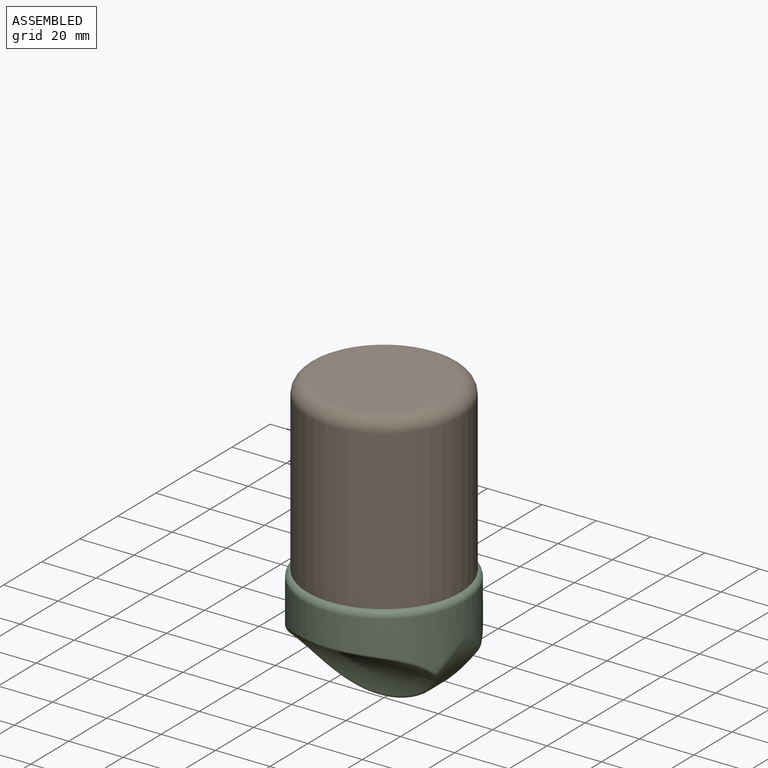
[diagram: assembled view]
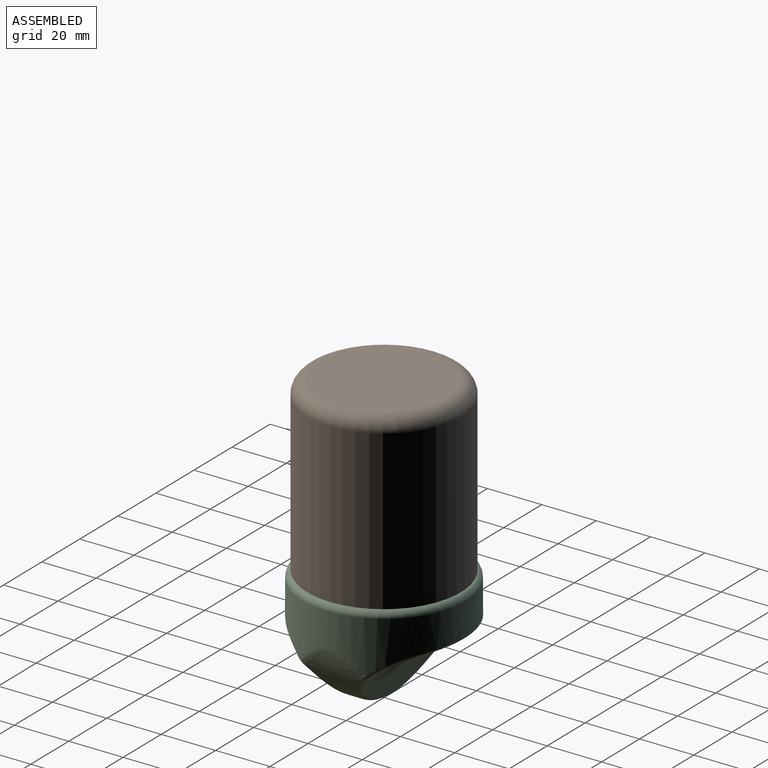
[diagram: assembled view, second angle]
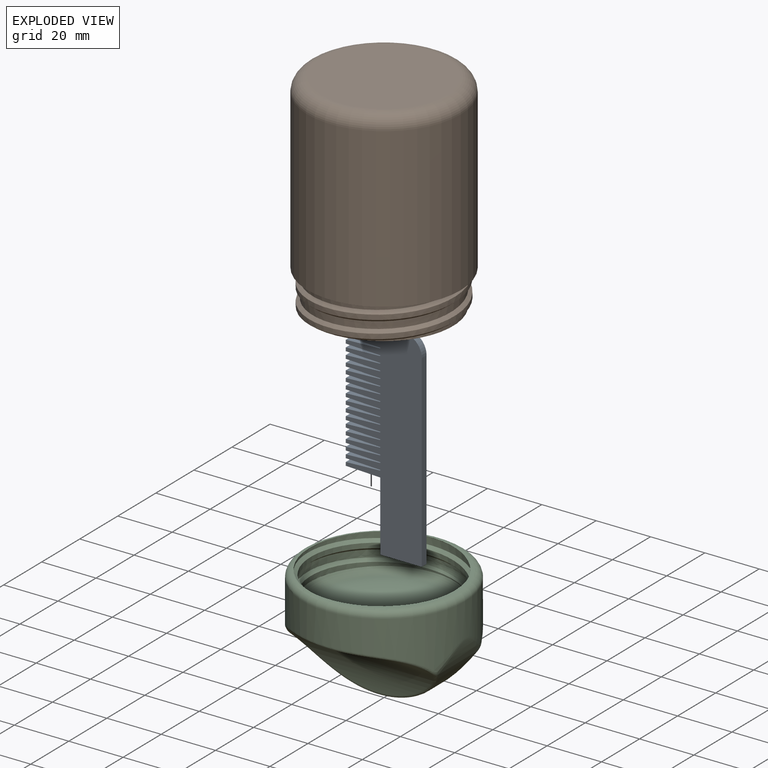
[diagram: exploded view]
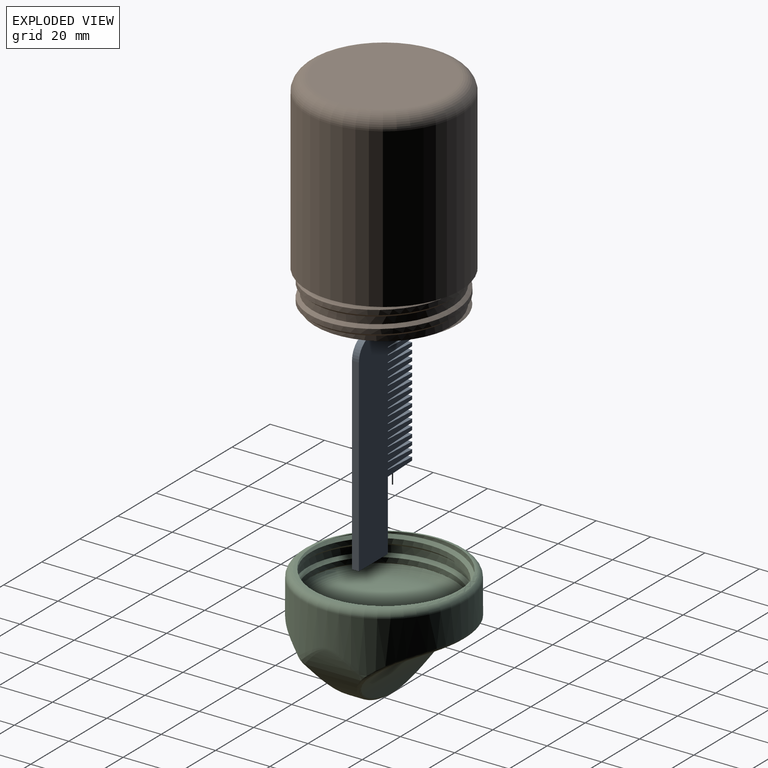
[diagram: exploded view, second angle]
ASSEMBLY  parts=3 mates=4
PART A: 86 faces, bbox 76.2x27.9x2.5 mm
  f0: plane 2.54x0.25mm, normal (0,1,0), area 0.6mm2, adj f24,f25,f80,f85
  f1: plane 2.54x0.25mm, normal (0,1,0), area 0.6mm2, adj f24,f25,f77,f82
  f2: plane 2.54x0.25mm, normal (0,1,0), area 0.6mm2, adj f24,f25,f74,f79
  f3: plane 2.54x0.25mm, normal (0,1,0), area 0.6mm2, adj f24,f25,f71,f76
  f4: plane 2.54x0.25mm, normal (0,1,0), area 0.6mm2, adj f24,f25,f68,f73
  f5: plane 2.54x0.25mm, normal (0,1,0), area 0.6mm2, adj f24,f25,f65,f70
  f6: plane 2.54x0.25mm, normal (0,1,0), area 0.6mm2, adj f24,f25,f62,f67
  f7: plane 2.54x0.25mm, normal (0,1,0), area 0.6mm2, adj f24,f25,f59,f64
  f8: plane 2.54x0.25mm, normal (0,1,0), area 0.6mm2, adj f24,f25,f56,f61
  f9: plane 2.54x0.25mm, normal (0,1,0), area 0.6mm2, adj f24,f25,f53,f58
  f10: plane 2.54x0.25mm, normal (0,1,0), area 0.6mm2, adj f24,f25,f50,f55
  f11: plane 2.54x0.25mm, normal (0,1,0), area 0.6mm2, adj f24,f25,f47,f52
  f12: plane 2.54x0.25mm, normal (0,1,0), area 0.6mm2, adj f24,f25,f44,f49
  f13: plane 2.54x0.25mm, normal (0,1,0), area 0.6mm2, adj f24,f25,f41,f46
  f14: plane 2.54x0.25mm, normal (0,1,0), area 0.6mm2, adj f24,f25,f38,f43
  f15: plane 2.54x0.25mm, normal (0,1,0), area 0.6mm2, adj f24,f25,f35,f40
  f16: plane 2.54x0.25mm, normal (0,1,0), area 0.6mm2, adj f24,f25,f32,f37
  f17: plane 2.54x0.25mm, normal (0,1,0), area 0.6mm2, adj f24,f25,f29,f34
  f18: plane 2.54x0.25mm, normal (0,1,0), area 0.6mm2, adj f24,f25,f26,f31
  f19: plane 69.41x2.54mm, normal (0,-1,0), area 176.3mm2, adj f20,f23,f24,f25
  f20: plane 15.24x2.54mm, normal (1,0,0), area 38.7mm2, adj f19,f21,f24,f25
  f21: plane 25.65x2.54mm, normal (0,1,0), area 65.2mm2, adj f20,f24,f25,f83
  f22: plane 8.45x2.54mm, normal (-1,0,0), area 21.5mm2, adj f23,f24,f25,f28
  f23: cylinder r=6.79mm len=6.79mm, axis (0,0,-1), area 27.1mm2, adj f19,f22,f24,f25
  f24: plane 76.2x27.94mm, normal (0,0,1), area 1603mm2, adj f0,f1,f2,f3,f4,f5,f6,f7
  f25: plane 76.2x27.94mm, normal (0,0,-1), area 1603mm2, adj f0,f1,f2,f3,f4,f5,f6,f7
  f26: plane 12.7x2.54mm, normal (1,0.04,0), area 32.3mm2, adj f18,f24,f25,f27
  f27: plane 2.54x1.27mm, normal (0,1,0), area 3.2mm2, adj f24,f25,f26,f28
  f28: plane 12.7x2.54mm, normal (-1,0.04,0), area 32.3mm2, adj f22,f24,f25,f27
  f29: plane 12.7x2.54mm, normal (1,0.04,0), area 32.3mm2, adj f17,f24,f25,f30
  f30: plane 2.54x1.27mm, normal (0,1,0), area 3.2mm2, adj f24,f25,f29,f31
  f31: plane 12.7x2.54mm, normal (-1,0.04,0), area 32.3mm2, adj f18,f24,f25,f30
  f32: plane 12.7x2.54mm, normal (1,0.04,0), area 32.3mm2, adj f16,f24,f25,f33
  f33: plane 2.54x1.27mm, normal (0,1,0), area 3.2mm2, adj f24,f25,f32,f34
  f34: plane 12.7x2.54mm, normal (-1,0.04,0), area 32.3mm2, adj f17,f24,f25,f33
  f35: plane 12.7x2.54mm, normal (1,0.04,0), area 32.3mm2, adj f15,f24,f25,f36
  f36: plane 2.54x1.27mm, normal (0,1,0), area 3.2mm2, adj f24,f25,f35,f37
  f37: plane 12.7x2.54mm, normal (-1,0.04,0), area 32.3mm2, adj f16,f24,f25,f36
  f38: plane 12.7x2.54mm, normal (1,0.04,0), area 32.3mm2, adj f14,f24,f25,f39
  f39: plane 2.54x1.27mm, normal (0,1,0), area 3.2mm2, adj f24,f25,f38,f40
  f40: plane 12.7x2.54mm, normal (-1,0.04,0), area 32.3mm2, adj f15,f24,f25,f39
  f41: plane 12.7x2.54mm, normal (1,0.04,0), area 32.3mm2, adj f13,f24,f25,f42
  f42: plane 2.54x1.27mm, normal (0,1,0), area 3.2mm2, adj f24,f25,f41,f43
  f43: plane 12.7x2.54mm, normal (-1,0.04,0), area 32.3mm2, adj f14,f24,f25,f42
  f44: plane 12.7x2.54mm, normal (1,0.04,0), area 32.3mm2, adj f12,f24,f25,f45
  f45: plane 2.54x1.27mm, normal (0,1,0), area 3.2mm2, adj f24,f25,f44,f46
  f46: plane 12.7x2.54mm, normal (-1,0.04,0), area 32.3mm2, adj f13,f24,f25,f45
  f47: plane 12.7x2.54mm, normal (1,0.04,0), area 32.3mm2, adj f11,f24,f25,f48
  f48: plane 2.54x1.27mm, normal (0,1,0), area 3.2mm2, adj f24,f25,f47,f49
  f49: plane 12.7x2.54mm, normal (-1,0.04,0), area 32.3mm2, adj f12,f24,f25,f48
  f50: plane 12.7x2.54mm, normal (1,0.04,0), area 32.3mm2, adj f10,f24,f25,f51
  f51: plane 2.54x1.27mm, normal (0,1,0), area 3.2mm2, adj f24,f25,f50,f52
  f52: plane 12.7x2.54mm, normal (-1,0.04,0), area 32.3mm2, adj f11,f24,f25,f51
  f53: plane 12.7x2.54mm, normal (1,0.04,0), area 32.3mm2, adj f9,f24,f25,f54
  f54: plane 2.54x1.27mm, normal (0,1,0), area 3.2mm2, adj f24,f25,f53,f55
  f55: plane 12.7x2.54mm, normal (-1,0.04,0), area 32.3mm2, adj f10,f24,f25,f54
  f56: plane 12.7x2.54mm, normal (1,0.04,0), area 32.3mm2, adj f8,f24,f25,f57
  f57: plane 2.54x1.27mm, normal (0,1,0), area 3.2mm2, adj f24,f25,f56,f58
  f58: plane 12.7x2.54mm, normal (-1,0.04,0), area 32.3mm2, adj f9,f24,f25,f57
  f59: plane 12.7x2.54mm, normal (1,0.04,0), area 32.3mm2, adj f7,f24,f25,f60
  f60: plane 2.54x1.27mm, normal (0,1,0), area 3.2mm2, adj f24,f25,f59,f61
  f61: plane 12.7x2.54mm, normal (-1,0.04,0), area 32.3mm2, adj f8,f24,f25,f60
  f62: plane 12.7x2.54mm, normal (1,0.04,0), area 32.3mm2, adj f6,f24,f25,f63
  f63: plane 2.54x1.27mm, normal (0,1,0), area 3.2mm2, adj f24,f25,f62,f64
  f64: plane 12.7x2.54mm, normal (-1,0.04,0), area 32.3mm2, adj f7,f24,f25,f63
  f65: plane 12.7x2.54mm, normal (1,0.04,0), area 32.3mm2, adj f5,f24,f25,f66
  f66: plane 2.54x1.27mm, normal (0,1,0), area 3.2mm2, adj f24,f25,f65,f67
  f67: plane 12.7x2.54mm, normal (-1,0.04,0), area 32.3mm2, adj f6,f24,f25,f66
  f68: plane 12.7x2.54mm, normal (1,0.04,0), area 32.3mm2, adj f4,f24,f25,f69
  f69: plane 2.54x1.27mm, normal (0,1,0), area 3.2mm2, adj f24,f25,f68,f70
  f70: plane 12.7x2.54mm, normal (-1,0.04,0), area 32.3mm2, adj f5,f24,f25,f69
  f71: plane 12.7x2.54mm, normal (1,0.04,0), area 32.3mm2, adj f3,f24,f25,f72
  f72: plane 2.54x1.27mm, normal (0,1,0), area 3.2mm2, adj f24,f25,f71,f73
  f73: plane 12.7x2.54mm, normal (-1,0.04,0), area 32.3mm2, adj f4,f24,f25,f72
  f74: plane 12.7x2.54mm, normal (1,0.04,0), area 32.3mm2, adj f2,f24,f25,f75
  f75: plane 2.54x1.27mm, normal (0,1,0), area 3.2mm2, adj f24,f25,f74,f76
  f76: plane 12.7x2.54mm, normal (-1,0.04,0), area 32.3mm2, adj f3,f24,f25,f75
  f77: plane 12.7x2.54mm, normal (1,0.04,0), area 32.3mm2, adj f1,f24,f25,f78
  f78: plane 2.54x1.27mm, normal (0,1,0), area 3.2mm2, adj f24,f25,f77,f79
  f79: plane 12.7x2.54mm, normal (-1,0.04,0), area 32.3mm2, adj f2,f24,f25,f78
  f80: plane 12.7x2.54mm, normal (1,0.04,0), area 32.3mm2, adj f0,f24,f25,f81
  f81: plane 2.54x1.27mm, normal (0,1,0), area 3.2mm2, adj f24,f25,f80,f82
  f82: plane 12.7x2.54mm, normal (-1,0.04,0), area 32.3mm2, adj f1,f24,f25,f81
  f83: plane 12.7x2.54mm, normal (1,0.04,0), area 32.3mm2, adj f21,f24,f25,f84
  f84: plane 2.54x1.27mm, normal (0,1,0), area 3.2mm2, adj f24,f25,f83,f85
  f85: plane 12.7x2.54mm, normal (-1,0.04,0), area 32.3mm2, adj f0,f24,f25,f84
PART B: 13 faces, bbox 61.3x61.8x78.3 mm
  f0: cylinder r=25.4mm len=50.8mm, axis (0,0,-1), area 856.5mm2, adj f2,f3,f5,f8,f9
  f1: cylinder r=26.67mm len=53.34mm, axis (0,0,1), area 585.2mm2, adj f2,f3,f5,f8,f9
  f2: bspline ~61.59x53.34mm, area 532.3mm2, adj f0,f1,f5,f9
  f3: bspline ~61.59x53.34mm, area 474.5mm2, adj f0,f1,f8,f9
  f4: cylinder r=28.24mm len=58.42mm, axis (0,0,-1), area 10365.3mm2, adj f5,f7
  f5: plane 56.69x56.69mm, normal (0,0,1), area 432.7mm2, adj f0,f1,f2,f4,f8
  f6: plane 46.32x46.32mm, normal (0,0,-1), area 1684.9mm2, adj f7
  f7: torus R=23.16mm, axis (0,0,1), area 1323.3mm2, adj f4,f6
  f8: plane 1.91x1.27mm, normal (0,-1,0), area 1.8mm2, adj f0,f1,f3,f5
  f9: plane 52.29x51.88mm, normal (0,0,1), area 481mm2, adj f0,f1,f2,f3,f12
  f10: plane 35.49x35.49mm, normal (0,0,1), area 989.5mm2, adj f11
  f11: torus R=17.75mm, axis (0,0,-1), area 1052mm2, adj f10,f12
  f12: cylinder r=22.83mm len=67.95mm, axis (0,0,-1), area 9745.2mm2, adj f9,f11
PART C: 27 faces, bbox 65.4x65.4x43.3 mm
  f0: plane 44.45x44.45mm, normal (0,0,-1), area 1507.8mm2, adj f6,f21,f22,f23,f24
  f1: cylinder r=29.84mm len=59.69mm, axis (0,0,-1), area 3582.8mm2, adj f11,f12,f16,f20,f26
  f2: cylinder r=30.25mm len=59.53mm, axis (0,-1,0), area 1599.2mm2, adj f11,f12,f13,f17
  f3: cylinder r=29.67mm len=51.86mm, axis (1,0,0), area 1457.6mm2, adj f17,f18,f19,f20
  f4: cylinder r=29.67mm len=51.86mm, axis (1,0,0), area 1457.4mm2, adj f13,f14,f15,f16
  f5: plane 55.43x36.32mm, normal (0,0,-1), area 90mm2, adj f7,f8,f9,f26
  f6: torus R=22.23mm, axis (0,0,1), area 1004.1mm2, adj f0,f7,f8,f9,f10
  f7: bspline ~63.06x54.61mm, area 388.3mm2, adj f5,f6,f8,f10
  f8: cylinder r=26.09mm len=52.18mm, axis (0,0,-1), area 500.8mm2, adj f5,f6,f7,f9
  f9: bspline ~63.06x54.61mm, area 423.2mm2, adj f5,f6,f8,f10
  f10: cylinder r=27.3mm len=53.35mm, axis (0,0,-1), area 525.4mm2, adj f6,f7,f9,f26
  f11: bspline ~27.84x10.69mm, area 54.6mm2, adj f1,f2,f14,f19
  f12: bspline ~27.71x10.62mm, area 54.6mm2, adj f1,f2,f15,f18
  f13: bspline ~55.78x18.75mm, area 113.6mm2, adj f2,f4,f14,f15
  f14: bspline ~4.2x4.11mm, area 4.4mm2, adj f4,f11,f13,f16
  f15: bspline ~4.16x4.07mm, area 4.4mm2, adj f4,f12,f13,f16
  f16: bspline ~55.58x19.4mm, area 117.9mm2, adj f1,f4,f14,f15
  f17: bspline ~55.78x18.75mm, area 113.6mm2, adj f2,f3,f18,f19
  f18: bspline ~4.2x4.11mm, area 4.4mm2, adj f3,f12,f17,f20
  f19: bspline ~4.16x4.07mm, area 4.4mm2, adj f3,f11,f17,f20
  f20: bspline ~56.01x19.52mm, area 117.9mm2, adj f1,f3,f18,f19
  f21: plane 12.7x2.79mm, normal (-1,0,0), area 35.5mm2, adj f0,f22,f24,f25
  f22: plane 15.75x12.7mm, normal (0,1,0), area 200mm2, adj f0,f21,f23,f25
  f23: plane 12.7x2.79mm, normal (1,0,0), area 35.5mm2, adj f0,f22,f24,f25
  f24: plane 15.75x12.7mm, normal (0,-1,0), area 200mm2, adj f0,f21,f23,f25
  f25: plane 15.75x2.79mm, normal (0,0,-1), area 44mm2, adj f21,f22,f23,f24
  f26: torus R=27.3mm, axis (0,0,1), area 725mm2, adj f1,f5,f10
PLACE A rot(axis=(-0.58,0.58,0.58),120deg) t=(-0.39,-0.13,-10.16)mm
PLACE B rot(axis=(0,-1,0),180deg) t=(0,0,2.54)mm
PLACE C rot(axis=(1,0,0),180deg) t=(0,0,2.54)mm
MATE planar C.f1 <-> B.f0  axis (0,0,1) through (0,0,-10.16)mm
MATE planar A.f20 <-> C.f25  axis (0,0,-1) through (7.23,-0.13,-22.86)mm
MATE planar A.f19 <-> C.f21  axis (1,0,0) through (14.85,-0.13,11.84)mm
MATE planar A.f25 <-> C.f24  axis (0,-1,0) through (7.23,-1.4,-22.86)mm
